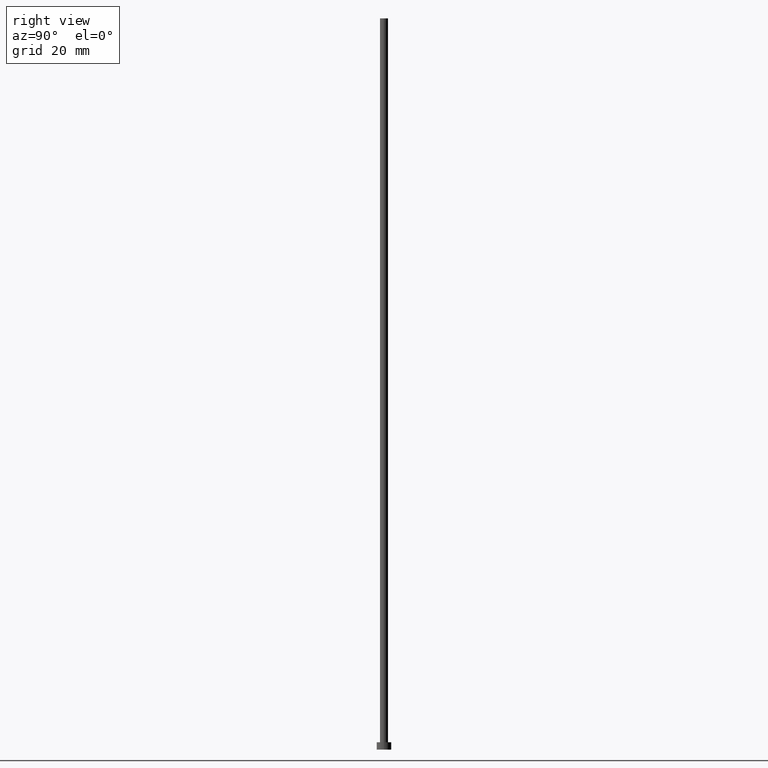
[diagram: clean part render]
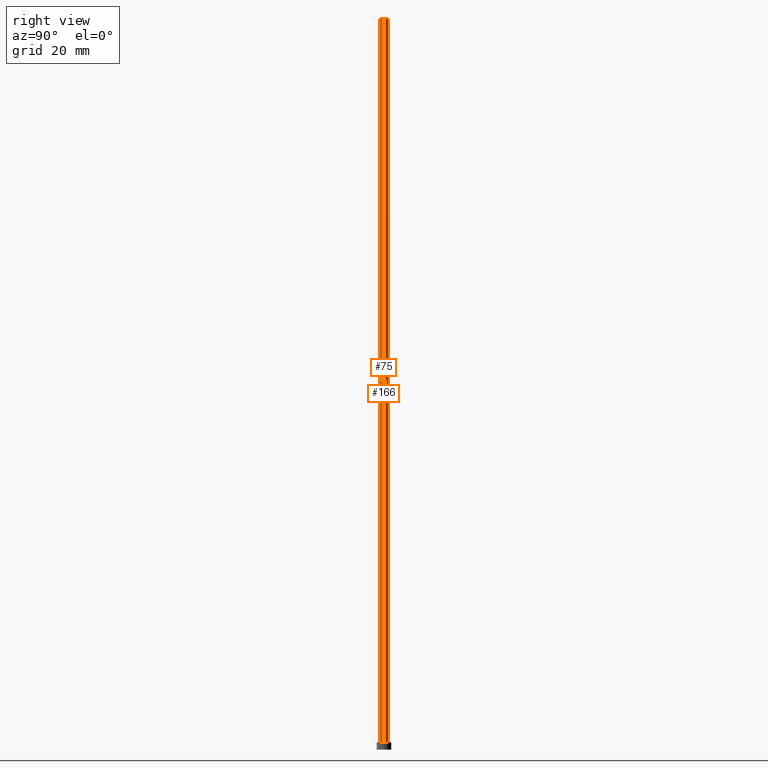
[diagram: same view with one multi-face feature highlighted, each face labeled with its STEP entity id]
A machine part, right view. The highlighted faces form ONE feature: a constant-radius fillet chain: 2 tangent blend faces with common blend radius 1.1 mm. The faces share edges in the B-rep.
Their STEP definitions:
[1] entity #166 (Cylinder):
#3 = DIRECTION ( 'NONE',  ( 1.000000000000000000, 0.000000000000000000, 0.000000000000000000 ) ) ;
#9 = AXIS2_PLACEMENT_3D ( 'NONE', #132, #246, #184 ) ;
#12 = EDGE_CURVE ( 'NONE', #42, #255, #193, .T. ) ;
#15 = EDGE_CURVE ( 'NONE', #160, #250, #236, .T. ) ;
#17 = CARTESIAN_POINT ( 'NONE',  ( 1.100000000000000089, 1.347111479062088503E-16, 2.000000000000000000 ) ) ;
#22 = AXIS2_PLACEMENT_3D ( 'NONE', #227, #43, #3 ) ;
#23 = ORIENTED_EDGE ( 'NONE', *, *, #15, .F. ) ;
#26 = EDGE_LOOP ( 'NONE', ( #23, #45, #234, #230 ) ) ;
#31 = DIRECTION ( 'NONE',  ( -0.000000000000000000, -0.000000000000000000, -1.000000000000000000 ) ) ;
#42 = VERTEX_POINT ( 'NONE', #17 ) ;
#43 = DIRECTION ( 'NONE',  ( 0.000000000000000000, 0.000000000000000000, 1.000000000000000000 ) ) ;
#45 = ORIENTED_EDGE ( 'NONE', *, *, #83, .T. ) ;
#50 = CYLINDRICAL_SURFACE ( 'NONE', #9, 1.100000000000000089 ) ;
#51 = VECTOR ( 'NONE', #182, 1000.000000000000000 ) ;
#73 = VECTOR ( 'NONE', #31, 1000.000000000000000 ) ;
#79 = DIRECTION ( 'NONE',  ( 0.000000000000000000, 0.000000000000000000, 1.000000000000000000 ) ) ;
#83 = EDGE_CURVE ( 'NONE', #160, #42, #165, .T. ) ;
#91 = LINE ( 'NONE', #218, #73 ) ;
#92 = FACE_OUTER_BOUND ( 'NONE', #26, .T. ) ;
#93 = CARTESIAN_POINT ( 'NONE',  ( 1.100000000000000089, 1.347111479062088503E-16, 199.6999999999999886 ) ) ;
#118 = AXIS2_PLACEMENT_3D ( 'NONE', #144, #79, #155 ) ;
#124 = EDGE_CURVE ( 'NONE', #250, #255, #91, .T. ) ;
#129 = CARTESIAN_POINT ( 'NONE',  ( 1.100000000000000089, 1.347111479062088503E-16, 199.6999999999999886 ) ) ;
#132 = CARTESIAN_POINT ( 'NONE',  ( 0.000000000000000000, 0.000000000000000000, 199.6999999999999886 ) ) ;
#144 = CARTESIAN_POINT ( 'NONE',  ( 0.000000000000000000, 0.000000000000000000, 2.000000000000000000 ) ) ;
#155 = DIRECTION ( 'NONE',  ( 1.000000000000000000, 0.000000000000000000, 0.000000000000000000 ) ) ;
#160 = VERTEX_POINT ( 'NONE', #93 ) ;
#165 = LINE ( 'NONE', #129, #51 ) ;
#166 = ADVANCED_FACE ( 'NONE', ( #92 ), #50, .T. ) ;
#182 = DIRECTION ( 'NONE',  ( -0.000000000000000000, -0.000000000000000000, -1.000000000000000000 ) ) ;
#184 = DIRECTION ( 'NONE',  ( -1.000000000000000000, 0.000000000000000000, 0.000000000000000000 ) ) ;
#193 = CIRCLE ( 'NONE', #118, 1.100000000000000089 ) ;
#218 = CARTESIAN_POINT ( 'NONE',  ( -1.100000000000000089, 0.000000000000000000, 199.6999999999999886 ) ) ;
#219 = CARTESIAN_POINT ( 'NONE',  ( -1.100000000000000089, 0.000000000000000000, 199.6999999999999886 ) ) ;
#227 = CARTESIAN_POINT ( 'NONE',  ( 0.000000000000000000, 0.000000000000000000, 199.6999999999999886 ) ) ;
#230 = ORIENTED_EDGE ( 'NONE', *, *, #124, .F. ) ;
#234 = ORIENTED_EDGE ( 'NONE', *, *, #12, .T. ) ;
#236 = CIRCLE ( 'NONE', #22, 1.100000000000000089 ) ;
#244 = CARTESIAN_POINT ( 'NONE',  ( -1.100000000000000089, 0.000000000000000000, 2.000000000000000000 ) ) ;
#246 = DIRECTION ( 'NONE',  ( -0.000000000000000000, -0.000000000000000000, -1.000000000000000000 ) ) ;
#250 = VERTEX_POINT ( 'NONE', #219 ) ;
#255 = VERTEX_POINT ( 'NONE', #244 ) ;
[2] entity #75 (Cylinder):
#1 = EDGE_LOOP ( 'NONE', ( #235, #194, #211, #18 ) ) ;
#4 = AXIS2_PLACEMENT_3D ( 'NONE', #46, #115, #187 ) ;
#17 = CARTESIAN_POINT ( 'NONE',  ( 1.100000000000000089, 1.347111479062088503E-16, 2.000000000000000000 ) ) ;
#18 = ORIENTED_EDGE ( 'NONE', *, *, #35, .T. ) ;
#19 = CIRCLE ( 'NONE', #34, 1.100000000000000089 ) ;
#29 = CYLINDRICAL_SURFACE ( 'NONE', #4, 1.100000000000000089 ) ;
#31 = DIRECTION ( 'NONE',  ( -0.000000000000000000, -0.000000000000000000, -1.000000000000000000 ) ) ;
#34 = AXIS2_PLACEMENT_3D ( 'NONE', #239, #66, #207 ) ;
#35 = EDGE_CURVE ( 'NONE', #255, #42, #19, .T. ) ;
#42 = VERTEX_POINT ( 'NONE', #17 ) ;
#46 = CARTESIAN_POINT ( 'NONE',  ( 0.000000000000000000, 0.000000000000000000, 199.6999999999999886 ) ) ;
#51 = VECTOR ( 'NONE', #182, 1000.000000000000000 ) ;
#54 = CARTESIAN_POINT ( 'NONE',  ( 0.000000000000000000, 0.000000000000000000, 199.6999999999999886 ) ) ;
#61 = EDGE_CURVE ( 'NONE', #250, #160, #231, .T. ) ;
#66 = DIRECTION ( 'NONE',  ( 0.000000000000000000, 0.000000000000000000, 1.000000000000000000 ) ) ;
#73 = VECTOR ( 'NONE', #31, 1000.000000000000000 ) ;
#75 = ADVANCED_FACE ( 'NONE', ( #200 ), #29, .T. ) ;
#83 = EDGE_CURVE ( 'NONE', #160, #42, #165, .T. ) ;
#91 = LINE ( 'NONE', #218, #73 ) ;
#93 = CARTESIAN_POINT ( 'NONE',  ( 1.100000000000000089, 1.347111479062088503E-16, 199.6999999999999886 ) ) ;
#115 = DIRECTION ( 'NONE',  ( -0.000000000000000000, -0.000000000000000000, -1.000000000000000000 ) ) ;
#124 = EDGE_CURVE ( 'NONE', #250, #255, #91, .T. ) ;
#129 = CARTESIAN_POINT ( 'NONE',  ( 1.100000000000000089, 1.347111479062088503E-16, 199.6999999999999886 ) ) ;
#140 = DIRECTION ( 'NONE',  ( 0.000000000000000000, 0.000000000000000000, 1.000000000000000000 ) ) ;
#160 = VERTEX_POINT ( 'NONE', #93 ) ;
#165 = LINE ( 'NONE', #129, #51 ) ;
#182 = DIRECTION ( 'NONE',  ( -0.000000000000000000, -0.000000000000000000, -1.000000000000000000 ) ) ;
#187 = DIRECTION ( 'NONE',  ( -1.000000000000000000, 0.000000000000000000, 0.000000000000000000 ) ) ;
#194 = ORIENTED_EDGE ( 'NONE', *, *, #61, .F. ) ;
#200 = FACE_OUTER_BOUND ( 'NONE', #1, .T. ) ;
#207 = DIRECTION ( 'NONE',  ( 1.000000000000000000, 0.000000000000000000, 0.000000000000000000 ) ) ;
#209 = DIRECTION ( 'NONE',  ( 1.000000000000000000, 0.000000000000000000, 0.000000000000000000 ) ) ;
#211 = ORIENTED_EDGE ( 'NONE', *, *, #124, .T. ) ;
#218 = CARTESIAN_POINT ( 'NONE',  ( -1.100000000000000089, 0.000000000000000000, 199.6999999999999886 ) ) ;
#219 = CARTESIAN_POINT ( 'NONE',  ( -1.100000000000000089, 0.000000000000000000, 199.6999999999999886 ) ) ;
#223 = AXIS2_PLACEMENT_3D ( 'NONE', #54, #140, #209 ) ;
#231 = CIRCLE ( 'NONE', #223, 1.100000000000000089 ) ;
#235 = ORIENTED_EDGE ( 'NONE', *, *, #83, .F. ) ;
#239 = CARTESIAN_POINT ( 'NONE',  ( 0.000000000000000000, 0.000000000000000000, 2.000000000000000000 ) ) ;
#244 = CARTESIAN_POINT ( 'NONE',  ( -1.100000000000000089, 0.000000000000000000, 2.000000000000000000 ) ) ;
#250 = VERTEX_POINT ( 'NONE', #219 ) ;
#255 = VERTEX_POINT ( 'NONE', #244 ) ;